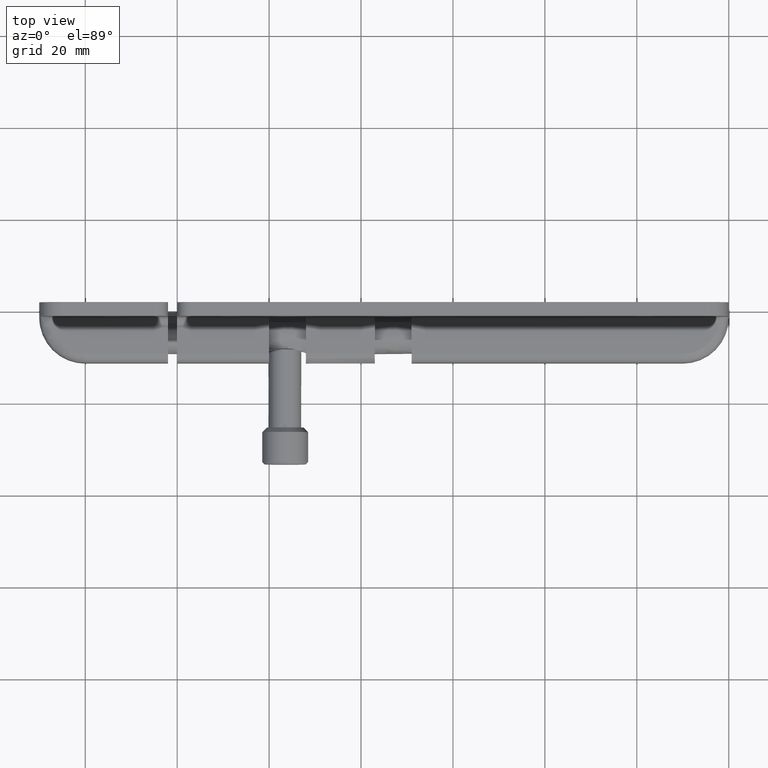
[diagram: clean part render]
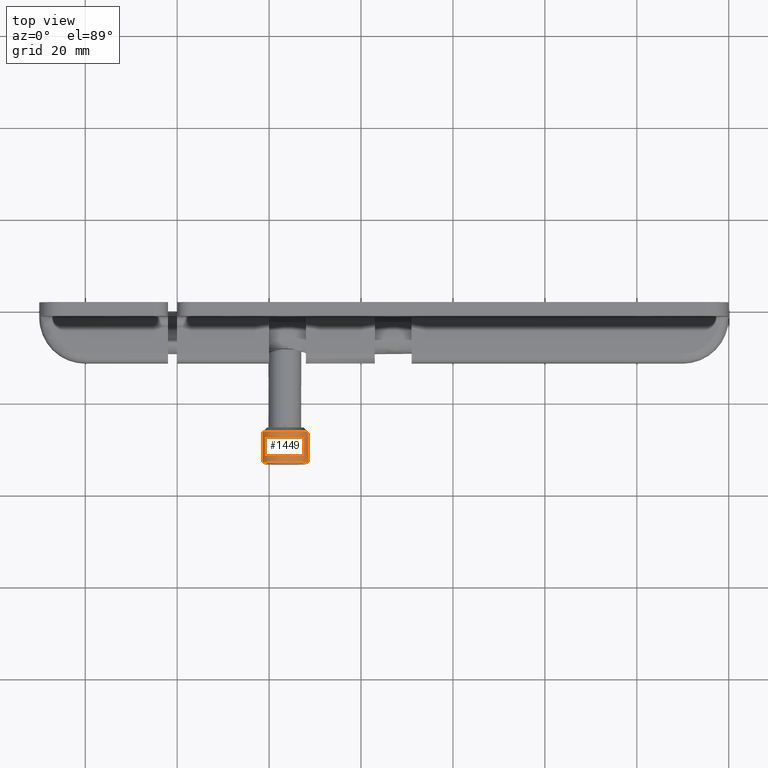
[diagram: same view with one face highlighted and labeled with its STEP entity id]
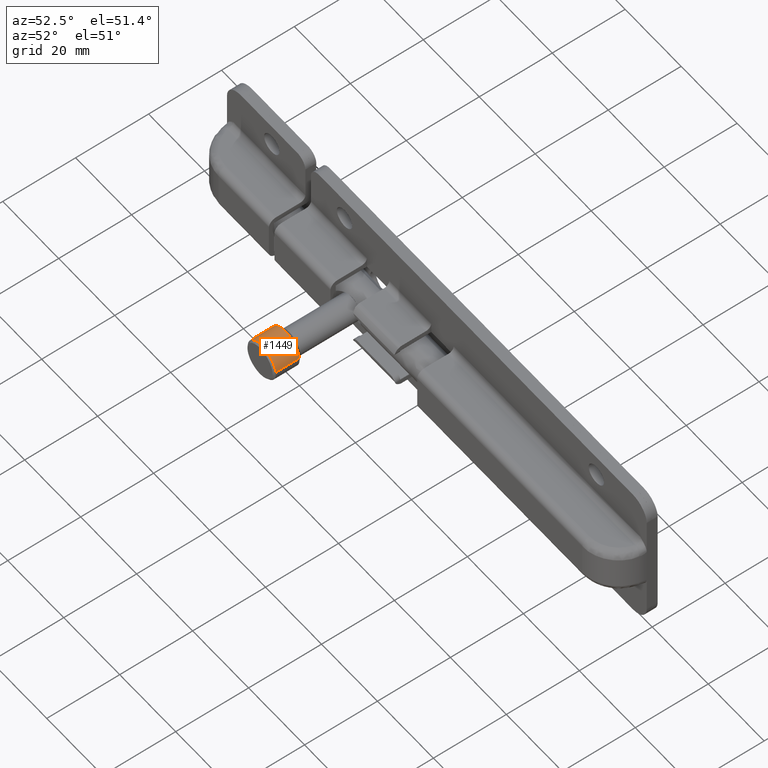
[diagram: same view with one face highlighted and labeled with its STEP entity id]
A machine part, top view. The second image highlights one B-rep face of the part: STEP entity #1449.
A second angle (auxiliary view) of the same face is appended — the face is thin or edge-on in the first view.
In plain terms, the highlighted face is a freeform B-spline surface patch.
Its self-contained STEP definition (entity closure, byte-faithful):
#1259=CARTESIAN_POINT('',(18.509326007891818,-26.499969999999859,0.305242697690832));
#1260=VERTEX_POINT('',#1259);
#1266=CARTESIAN_POINT('',(23.500000000000000,-26.499970000000001,5.0));
#1267=VERTEX_POINT('',#1266);
#1268=CARTESIAN_POINT('',(23.500000000000000,-26.499970000000001,5.0));
#1269=CARTESIAN_POINT('',(18.796469665534072,-26.499970000000008,4.999999999999998));
#1270=CARTESIAN_POINT('',(18.509326007891811,-26.499969999999859,0.305242697690832));
#1278=(BOUNDED_CURVE()B_SPLINE_CURVE(2,(#1268,#1269,#1270),.UNSPECIFIED.,.F.,.U.)B_SPLINE_CURVE_WITH_KNOTS((3,3),(0.500000000000000,0.739332962239678),.UNSPECIFIED.)CURVE()GEOMETRIC_REPRESENTATION_ITEM()RATIONAL_B_SPLINE_CURVE((1.0,0.719603993285849,0.976072041668293))REPRESENTATION_ITEM(''));
#1279=EDGE_CURVE('',#1267,#1260,#1278,.T.);
#1281=CARTESIAN_POINT('',(28.467345967165770,-26.499970000000001,0.570503323813210));
#1282=VERTEX_POINT('',#1281);
#1283=CARTESIAN_POINT('',(28.467345967165770,-26.499970000000001,0.570503323813210));
#1284=CARTESIAN_POINT('',(27.958615028393258,-26.499970000000008,5.0));
#1285=CARTESIAN_POINT('',(23.500000000000000,-26.499970000000001,5.0));
#1293=(BOUNDED_CURVE()B_SPLINE_CURVE(2,(#1283,#1284,#1285),.UNSPECIFIED.,.F.,.U.)B_SPLINE_CURVE_WITH_KNOTS((3,3),(0.269767755884200,0.500000000000000),.UNSPECIFIED.)CURVE()GEOMETRIC_REPRESENTATION_ITEM()RATIONAL_B_SPLINE_CURVE((0.957343736445689,0.730266147785116,1.0))REPRESENTATION_ITEM(''));
#1294=EDGE_CURVE('',#1282,#1267,#1293,.T.);
#1385=CARTESIAN_POINT('',(28.467345967178566,-26.337469249999998,0.570503323701802));
#1386=CARTESIAN_POINT('',(27.989075762930408,-26.337469250000005,4.734779799566036));
#1387=CARTESIAN_POINT('',(23.805242697674281,-26.337469250000002,4.990673992109334));
#1388=CARTESIAN_POINT('',(18.814568705564948,-26.337469249999995,5.295916689783620));
#1389=CARTESIAN_POINT('',(18.509326007890671,-26.337469250000002,0.305242697674285));
#1390=CARTESIAN_POINT('',(28.467345967178566,-33.166563268750018,0.570503323701802));
#1391=CARTESIAN_POINT('',(27.989075762930408,-33.166563268750018,4.734779799566036));
#1392=CARTESIAN_POINT('',(23.805242697674281,-33.166563268750011,4.990673992109334));
#1393=CARTESIAN_POINT('',(18.814568705564948,-33.166563268750011,5.295916689783620));
#1394=CARTESIAN_POINT('',(18.509326007890671,-33.166563268750011,0.305242697674285));
#1402=(BOUNDED_SURFACE()B_SPLINE_SURFACE(2,1,((#1385,#1390),(#1386,#1391),(#1387,#1392),(#1388,#1393),(#1389,#1394)),.UNSPECIFIED.,.F.,.F.,.U.)B_SPLINE_SURFACE_WITH_KNOTS((3,2,3),(2,2),(0.0,7.290158697766469,15.574429945228371),(0.0,6.829094018750022),.UNSPECIFIED.)GEOMETRIC_REPRESENTATION_ITEM()RATIONAL_B_SPLINE_SURFACE(((0.938140952186599,0.938140952186599),(0.742253967444162,0.742253967444162),(1.0,1.0),(0.707106781186548,0.707106781186548),(1.0,1.0)))REPRESENTATION_ITEM('')SURFACE());
#1403=CARTESIAN_POINT('',(28.467345967167809,-33.0,0.570503323795506));
#1404=VERTEX_POINT('',#1403);
#1405=CARTESIAN_POINT('',(23.500000000000000,-33.0,5.0));
#1406=VERTEX_POINT('',#1405);
#1407=CARTESIAN_POINT('',(28.467345967167805,-33.0,0.570503323795506));
#1408=CARTESIAN_POINT('',(27.958615028425253,-33.0,4.999999999999999));
#1409=CARTESIAN_POINT('',(23.500000000000000,-33.0,5.0));
#1417=(BOUNDED_CURVE()B_SPLINE_CURVE(2,(#1407,#1408,#1409),.UNSPECIFIED.,.F.,.U.)B_SPLINE_CURVE_WITH_KNOTS((3,3),(0.269767755882994,0.500000000000000),.UNSPECIFIED.)CURVE()GEOMETRIC_REPRESENTATION_ITEM()RATIONAL_B_SPLINE_CURVE((0.957343736448069,0.730266147783702,1.0))REPRESENTATION_ITEM(''));
#1418=EDGE_CURVE('',#1404,#1406,#1417,.T.);
#1419=ORIENTED_EDGE('',*,*,#1418,.F.);
#1420=CARTESIAN_POINT('',(28.467345967165770,-26.499970000000001,0.570503323813210));
#1421=CARTESIAN_POINT('',(28.467345967167809,-33.0,0.570503323795506));
#1422=QUASI_UNIFORM_CURVE('',1,(#1420,#1421),.UNSPECIFIED.,.F.,.U.);
#1423=EDGE_CURVE('',#1282,#1404,#1422,.T.);
#1424=ORIENTED_EDGE('',*,*,#1423,.F.);
#1425=ORIENTED_EDGE('',*,*,#1294,.T.);
#1426=ORIENTED_EDGE('',*,*,#1279,.T.);
#1427=CARTESIAN_POINT('',(18.509325969650639,-32.999999999966647,0.305242072454156));
#1428=VERTEX_POINT('',#1427);
#1429=CARTESIAN_POINT('',(18.509326007891818,-26.499969999999859,0.305242697690832));
#1430=CARTESIAN_POINT('',(18.509325969650639,-32.999999999966647,0.305242072454156));
#1431=QUASI_UNIFORM_CURVE('',1,(#1429,#1430),.UNSPECIFIED.,.F.,.U.);
#1432=EDGE_CURVE('',#1260,#1428,#1431,.T.);
#1433=ORIENTED_EDGE('',*,*,#1432,.T.);
#1434=CARTESIAN_POINT('',(23.500000000000000,-33.0,5.0));
#1435=CARTESIAN_POINT('',(18.796469075122943,-33.000000000000007,4.999999999999999));
#1436=CARTESIAN_POINT('',(18.509325969650643,-32.999999999966654,0.305242072454156));
#1444=(BOUNDED_CURVE()B_SPLINE_CURVE(2,(#1434,#1435,#1436),.UNSPECIFIED.,.F.,.U.)B_SPLINE_CURVE_WITH_KNOTS((3,3),(0.500000000000000,0.739332983858233),.UNSPECIFIED.)CURVE()GEOMETRIC_REPRESENTATION_ITEM()RATIONAL_B_SPLINE_CURVE((1.0,0.719603967958137,0.976072088000975))REPRESENTATION_ITEM(''));
#1445=EDGE_CURVE('',#1406,#1428,#1444,.T.);
#1446=ORIENTED_EDGE('',*,*,#1445,.F.);
#1447=EDGE_LOOP('',(#1419,#1424,#1425,#1426,#1433,#1446));
#1448=FACE_OUTER_BOUND('',#1447,.T.);
#1449=ADVANCED_FACE('',(#1448),#1402,.T.);